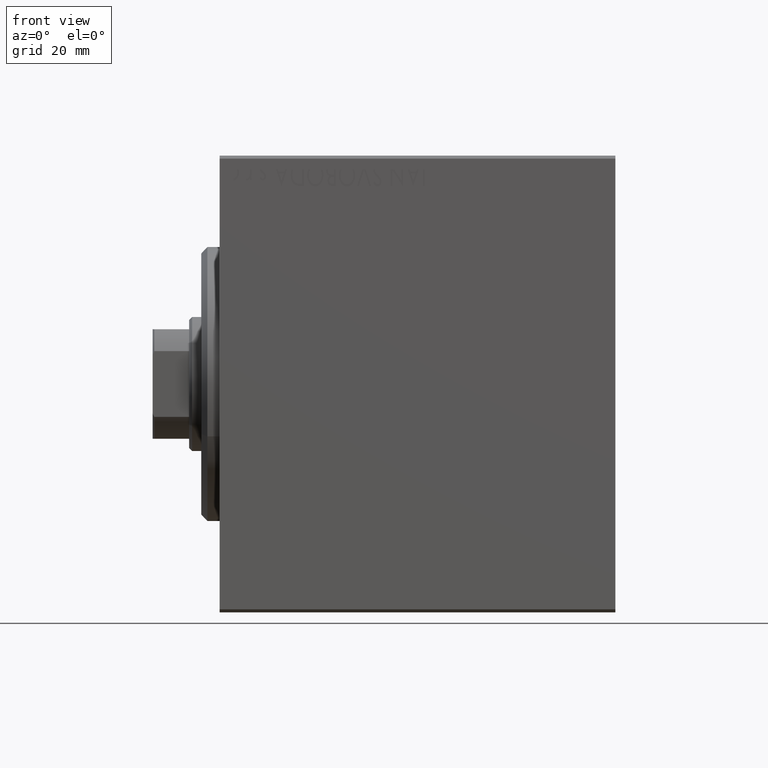
[diagram: clean part render]
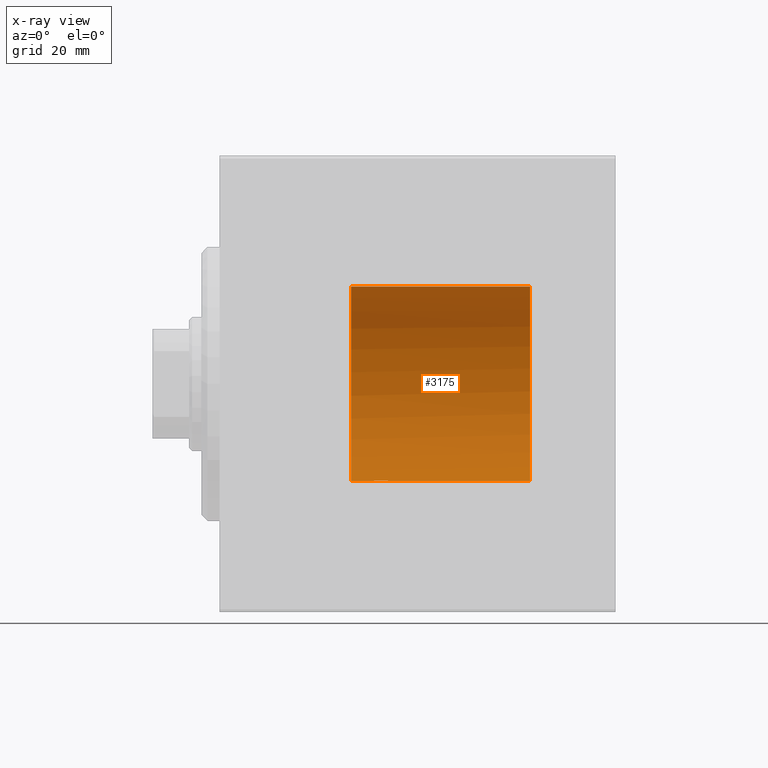
[diagram: x-ray — body ghosted, one internal face saturated and labeled with its STEP entity id]
A machine part, front view, then the same camera in x-ray: the body is ghosted and one INTERNAL B-rep face — a face not visible from any outside direction — is saturated and labeled: STEP entity #3175.
In plain terms, the highlighted cylindrical surface (partial cylindrical patch) has radius 16 mm, axis along (-1, -0, -0).
Its self-contained STEP definition (entity closure, byte-faithful):
#447 = VERTEX_POINT ( 'NONE', #35700 ) ;
#722 = FACE_OUTER_BOUND ( 'NONE', #30699, .T. ) ;
#1453 = LINE ( 'NONE', #28591, #8141 ) ;
#1794 = CIRCLE ( 'NONE', #34476, 16.00000000000000000 ) ;
#1879 = CARTESIAN_POINT ( 'NONE',  ( 50.99999999999999289, 1.322875655532287809, -15.94521871910197675 ) ) ;
#2644 = CARTESIAN_POINT ( 'NONE',  ( 25.27043888260214999, 1.598790766515152173, -15.92099550861380486 ) ) ;
#3175 = ADVANCED_FACE ( 'NONE', ( #722 ), #38068, .F. ) ;
#3313 = CARTESIAN_POINT ( 'NONE',  ( 28.23482670674955486, 1.003662148334367954, -15.96885838080211073 ) ) ;
#4117 = LINE ( 'NONE', #24998, #37364 ) ;
#4344 = LINE ( 'NONE', #14574, #30426 ) ;
#5322 = CARTESIAN_POINT ( 'NONE',  ( 24.99389287531754178, 1.322357532253823909, -15.94553003295877325 ) ) ;
#5694 = B_SPLINE_CURVE_WITH_KNOTS ( 'NONE', 3,
 ( #19545, #29571, #32680, #43354, #23107, #16218, #42693, #35782, #5322, #2644, #18884, #25776, #32460, #33112, #12227, #22454, #16890, #23558, #23774, #26902, #37114, #33561, #24218, #3313, #43570, #40449, #20872, #43799, #41117, #23338 ),
 .UNSPECIFIED., .F., .F.,
 ( 4, 2, 2, 2, 2, 2, 2, 2, 2, 2, 2, 2, 2, 2, 4 ),
 ( 6.061338176617876434E-19, 0.0003911894522871146732, 0.0007823789045742288043, 0.001173568356861343261, 0.001564757809148457609, 0.002347136713722686955, 0.003129515618296916518, 0.003520705070584036721, 0.003911894522871156923, 0.004303083975158277993, 0.004694273427445398196, 0.005085462879732518399, 0.005476652332019638601, 0.005867841784306759671, 0.006259031236593879007 ),
 .UNSPECIFIED. ) ;
#5818 = CARTESIAN_POINT ( 'NONE',  ( 50.50000000000000000, 1.959434878635765526E-15, -16.00000000000000000 ) ) ;
#6161 = CARTESIAN_POINT ( 'NONE',  ( 28.49999999999999645, 1.959434851239213200E-15, -16.00000000000000000 ) ) ;
#6186 = VERTEX_POINT ( 'NONE', #28517 ) ;
#6259 = CARTESIAN_POINT ( 'NONE',  ( 50.67218159183688897, 0.8208159241335455381, -15.97933385611439938 ) ) ;
#6273 = DIRECTION ( 'NONE',  ( 0.000000000000000000, 0.000000000000000000, 1.000000000000000000 ) ) ;
#6340 = ORIENTED_EDGE ( 'NONE', *, *, #26360, .F. ) ;
#6446 = VERTEX_POINT ( 'NONE', #15765 ) ;
#6504 = CARTESIAN_POINT ( 'NONE',  ( 24.50000000000000000, -2.103178745110437193E-15, -16.00000000000000000 ) ) ;
#6949 = DIRECTION ( 'NONE',  ( -1.000000000000000000, 0.000000000000000000, 0.000000000000000000 ) ) ;
#7606 = CARTESIAN_POINT ( 'NONE',  ( 51.00000000000000000, 0.000000000000000000, 0.000000000000000000 ) ) ;
#8141 = VECTOR ( 'NONE', #25021, 1000.000000000000000 ) ;
#8706 = CARTESIAN_POINT ( 'NONE',  ( 50.50000000000000711, 0.2433491955511186966, -16.00000000000000355 ) ) ;
#8930 = CARTESIAN_POINT ( 'NONE',  ( 50.99999999999999289, 1.322875655532287809, -15.94521871910197675 ) ) ;
#12227 = CARTESIAN_POINT ( 'NONE',  ( 26.76251583007899271, 1.987008272775795614, -15.87616016863256263 ) ) ;
#12666 = CARTESIAN_POINT ( 'NONE',  ( 51.00000000000000000, 0.000000000000000000, 0.000000000000000000 ) ) ;
#14574 = CARTESIAN_POINT ( 'NONE',  ( 51.00000000000000000, 0.000000000000000000, 16.00000000000000000 ) ) ;
#14817 = EDGE_CURVE ( 'NONE', #6446, #447, #39631, .T. ) ;
#15765 = CARTESIAN_POINT ( 'NONE',  ( 21.60000000000000142, 0.000000000000000000, 16.00000000000000000 ) ) ;
#16218 = CARTESIAN_POINT ( 'NONE',  ( 24.70286585251780664, 0.8874076679346751817, -15.97583181162461408 ) ) ;
#16890 = CARTESIAN_POINT ( 'NONE',  ( 27.14386968033013758, 1.898058445420891305, -15.88709929148890510 ) ) ;
#16938 = EDGE_CURVE ( 'NONE', #39961, #24353, #31813, .T. ) ;
#18126 = DIRECTION ( 'NONE',  ( -1.000000000000000000, -0.000000000000000000, -0.000000000000000000 ) ) ;
#18884 = CARTESIAN_POINT ( 'NONE',  ( 25.49340818440419199, 1.747750603376302614, -15.90457341008072412 ) ) ;
#19545 = CARTESIAN_POINT ( 'NONE',  ( 24.50000000000000000, -2.103178745110437193E-15, -16.00000000000000000 ) ) ;
#20079 = VERTEX_POINT ( 'NONE', #6161 ) ;
#20539 = DIRECTION ( 'NONE',  ( -1.000000000000000000, -0.000000000000000000, -0.000000000000000000 ) ) ;
#20872 = CARTESIAN_POINT ( 'NONE',  ( 28.43569052926130070, 0.5198215460038754232, -15.99206840425679310 ) ) ;
#21537 = ORIENTED_EDGE ( 'NONE', *, *, #29032, .F. ) ;
#22454 = CARTESIAN_POINT ( 'NONE',  ( 27.01913097710113121, 1.935876924222081907, -15.88247600692093187 ) ) ;
#23094 = CARTESIAN_POINT ( 'NONE',  ( 50.50000000000000000, 1.959434878635765526E-15, -16.00000000000000000 ) ) ;
#23107 = CARTESIAN_POINT ( 'NONE',  ( 24.60241129944407135, 0.6452446332038127563, -15.98744362947834574 ) ) ;
#23338 = CARTESIAN_POINT ( 'NONE',  ( 28.49999999999999645, 1.959434851239213200E-15, -16.00000000000000000 ) ) ;
#23558 = CARTESIAN_POINT ( 'NONE',  ( 27.38617757057268420, 1.797743958659262731, -15.89876304682111652 ) ) ;
#23774 = CARTESIAN_POINT ( 'NONE',  ( 27.50311247035038775, 1.735145127817748323, -15.90580292899658410 ) ) ;
#24218 = CARTESIAN_POINT ( 'NONE',  ( 28.09001528100123224, 1.220169175415120932, -15.95377581882983797 ) ) ;
#24353 = VERTEX_POINT ( 'NONE', #1879 ) ;
#24998 = CARTESIAN_POINT ( 'NONE',  ( 51.00000000000000000, 1.959434878635765131E-15, -16.00000000000000000 ) ) ;
#25021 = DIRECTION ( 'NONE',  ( -1.000000000000000000, -0.000000000000000000, -0.000000000000000000 ) ) ;
#25096 = EDGE_CURVE ( 'NONE', #42313, #20079, #5694, .T. ) ;
#25776 = CARTESIAN_POINT ( 'NONE',  ( 25.97468243540595978, 1.947280337074166923, -15.88137861827786779 ) ) ;
#25805 = ORIENTED_EDGE ( 'NONE', *, *, #16938, .T. ) ;
#26286 = CARTESIAN_POINT ( 'NONE',  ( 50.54367868930802388, 0.4810848027709638819, -15.99437258783358651 ) ) ;
#26360 = EDGE_CURVE ( 'NONE', #39961, #20079, #1453, .T. ) ;
#26902 = CARTESIAN_POINT ( 'NONE',  ( 27.71967657442277400, 1.590393755196007008, -15.92092783521424337 ) ) ;
#27408 = CARTESIAN_POINT ( 'NONE',  ( 21.60000000000000142, 0.000000000000000000, 0.000000000000000000 ) ) ;
#28517 = CARTESIAN_POINT ( 'NONE',  ( 51.00000000000000000, 0.000000000000000000, 16.00000000000000000 ) ) ;
#28591 = CARTESIAN_POINT ( 'NONE',  ( 51.00000000000000000, 1.959434878635765131E-15, -16.00000000000000000 ) ) ;
#29032 = EDGE_CURVE ( 'NONE', #6186, #24353, #1794, .T. ) ;
#29571 = CARTESIAN_POINT ( 'NONE',  ( 24.50000000000000000, 0.1322838750249235862, -16.00000000000000355 ) ) ;
#29948 = ORIENTED_EDGE ( 'NONE', *, *, #14817, .T. ) ;
#30426 = VECTOR ( 'NONE', #18126, 1000.000000000000000 ) ;
#30699 = EDGE_LOOP ( 'NONE', ( #6340, #25805, #21537, #33966, #29948, #34808, #31229 ) ) ;
#30984 = DIRECTION ( 'NONE',  ( 0.000000000000000000, 0.000000000000000000, 1.000000000000000000 ) ) ;
#31229 = ORIENTED_EDGE ( 'NONE', *, *, #25096, .T. ) ;
#31813 = B_SPLINE_CURVE_WITH_KNOTS ( 'NONE', 3,
 ( #5818, #8706, #26286, #6259, #36728, #36072, #33168, #8930 ),
 .UNSPECIFIED., .F., .F.,
 ( 4, 2, 2, 4 ),
 ( 9.214096943730415343E-18, 0.0007196314630503429510, 0.001079447194575513342, 0.001439262926100683950 ),
 .UNSPECIFIED. ) ;
#32460 = CARTESIAN_POINT ( 'NONE',  ( 26.23808537237744787, 1.999903730784159617, -15.87451999516785861 ) ) ;
#32680 = CARTESIAN_POINT ( 'NONE',  ( 24.51299475991587329, 0.2623312429553279479, -15.99836091803360105 ) ) ;
#33112 = CARTESIAN_POINT ( 'NONE',  ( 26.62985308350499025, 2.000047931387146871, -15.87450182760080253 ) ) ;
#33168 = CARTESIAN_POINT ( 'NONE',  ( 50.92027417147126300, 1.232475063237039592, -15.95271869416660060 ) ) ;
#33561 = CARTESIAN_POINT ( 'NONE',  ( 28.00737160312429452, 1.321075116345887368, -15.94564302722882587 ) ) ;
#33966 = ORIENTED_EDGE ( 'NONE', *, *, #40417, .T. ) ;
#34439 = EDGE_CURVE ( 'NONE', #42313, #447, #4117, .T. ) ;
#34476 = AXIS2_PLACEMENT_3D ( 'NONE', #12666, #36888, #36233 ) ;
#34808 = ORIENTED_EDGE ( 'NONE', *, *, #34439, .F. ) ;
#35195 = AXIS2_PLACEMENT_3D ( 'NONE', #7606, #20539, #30984 ) ;
#35700 = CARTESIAN_POINT ( 'NONE',  ( 21.60000000000000142, 1.959434878635765131E-15, -16.00000000000000000 ) ) ;
#35782 = CARTESIAN_POINT ( 'NONE',  ( 24.90948495147901554, 1.219564485341768645, -15.95382484008323409 ) ) ;
#36072 = CARTESIAN_POINT ( 'NONE',  ( 50.84826768755139881, 1.134084171644547778, -15.96008906528493476 ) ) ;
#36233 = DIRECTION ( 'NONE',  ( 0.000000000000000000, 0.000000000000000000, 1.000000000000000000 ) ) ;
#36728 = CARTESIAN_POINT ( 'NONE',  ( 50.72464463578930349, 0.9286979439677397474, -15.97335625374555335 ) ) ;
#36888 = DIRECTION ( 'NONE',  ( -1.000000000000000000, 0.000000000000000000, 0.000000000000000000 ) ) ;
#37114 = CARTESIAN_POINT ( 'NONE',  ( 27.82075824828932653, 1.507649250492136606, -15.92908549642227101 ) ) ;
#37364 = VECTOR ( 'NONE', #38557, 1000.000000000000000 ) ;
#38068 = CYLINDRICAL_SURFACE ( 'NONE', #35195, 16.00000000000000000 ) ;
#38557 = DIRECTION ( 'NONE',  ( -1.000000000000000000, -0.000000000000000000, -0.000000000000000000 ) ) ;
#39631 = CIRCLE ( 'NONE', #43917, 16.00000000000000000 ) ;
#39961 = VERTEX_POINT ( 'NONE', #23094 ) ;
#40417 = EDGE_CURVE ( 'NONE', #6186, #6446, #4344, .T. ) ;
#40449 = CARTESIAN_POINT ( 'NONE',  ( 28.39783726498895433, 0.6445079780200565489, -15.98747331501412106 ) ) ;
#41117 = CARTESIAN_POINT ( 'NONE',  ( 28.49999999999999645, 0.1305944228192321699, -16.00000000000000000 ) ) ;
#42313 = VERTEX_POINT ( 'NONE', #6504 ) ;
#42693 = CARTESIAN_POINT ( 'NONE',  ( 24.76431901501738864, 1.002241074716281544, -15.96895041604536125 ) ) ;
#43354 = CARTESIAN_POINT ( 'NONE',  ( 24.56388673317935556, 0.5181437283162043661, -15.99211983514074653 ) ) ;
#43570 = CARTESIAN_POINT ( 'NONE',  ( 28.29749928605040665, 0.8866640484200122296, -15.97587307151818514 ) ) ;
#43799 = CARTESIAN_POINT ( 'NONE',  ( 28.48690924832125759, 0.2632563459770846381, -15.99834873924246814 ) ) ;
#43917 = AXIS2_PLACEMENT_3D ( 'NONE', #27408, #6949, #6273 ) ;